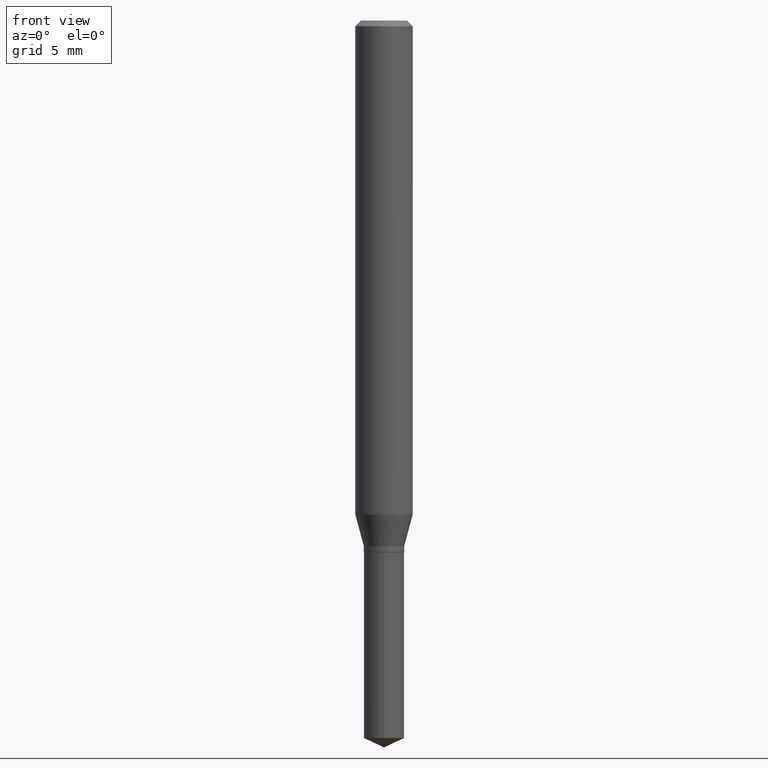
[diagram: clean part render]
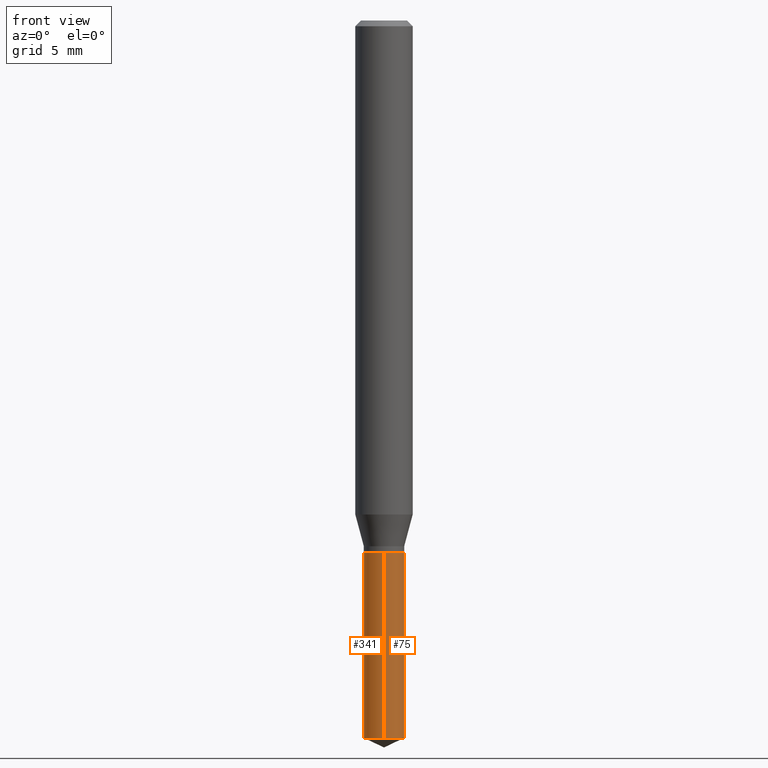
[diagram: same view with one multi-face feature highlighted, each face labeled with its STEP entity id]
A machine part, front view. The highlighted faces form ONE feature: a constant-radius fillet chain: 2 tangent blend faces with common blend radius 1.0554 mm. The faces share edges in the B-rep.
Their STEP definitions:
[1] entity #341 (Cylinder):
#4 = VERTEX_POINT ( 'NONE', #158 ) ;
#15 = EDGE_LOOP ( 'NONE', ( #53, #269, #306, #420 ) ) ;
#25 = DIRECTION ( 'NONE',  ( -2.445458899330790108E-29, 3.491495526022433599E-15, 1.000000000000000000 ) ) ;
#30 = DIRECTION ( 'NONE',  ( -2.445458899330790108E-29, 3.491495526022433205E-15, 1.000000000000000000 ) ) ;
#31 = CIRCLE ( 'NONE', #397, 0.04154999999999999666 ) ;
#49 = CARTESIAN_POINT ( 'NONE',  ( 2.952305067083577432E-16, 0.04154999999999484800, -1.476724916803660026 ) ) ;
#53 = ORIENTED_EDGE ( 'NONE', *, *, #256, .F. ) ;
#60 = CARTESIAN_POINT ( 'NONE',  ( 2.676565608369631794E-29, -3.821426325363822773E-15, -1.094499999999999806 ) ) ;
#66 = CARTESIAN_POINT ( 'NONE',  ( -2.901420992578375736E-16, -0.04155000000000381999, -1.094499999999999806 ) ) ;
#70 = DIRECTION ( 'NONE',  ( -2.445458899330790108E-29, 3.491495526022433205E-15, 1.000000000000000000 ) ) ;
#124 = CARTESIAN_POINT ( 'NONE',  ( -2.901420992578375736E-16, -0.04155000000000381999, -1.094499999999999806 ) ) ;
#132 = DIRECTION ( 'NONE',  ( -2.445458899330790108E-29, 3.491495526022433599E-15, 1.000000000000000000 ) ) ;
#145 = DIRECTION ( 'NONE',  ( -6.982962677686265133E-15, -1.000000000000000000, 3.287422375047248476E-15 ) ) ;
#150 = CARTESIAN_POINT ( 'NONE',  ( -2.901420992578283045E-16, -0.04155000000000516613, -1.476724916803659582 ) ) ;
#158 = CARTESIAN_POINT ( 'NONE',  ( 2.952305067083576939E-16, 0.04154999999999617333, -1.094500000000000028 ) ) ;
#170 = LINE ( 'NONE', #425, #327 ) ;
#178 = DIRECTION ( 'NONE',  ( -6.982962677686265133E-15, -1.000000000000000000, 3.287422375047248476E-15 ) ) ;
#187 = CARTESIAN_POINT ( 'NONE',  ( 2.676565608369631794E-29, -3.821426325363822773E-15, -1.094499999999999806 ) ) ;
#191 = FACE_OUTER_BOUND ( 'NONE', #15, .T. ) ;
#211 = DIRECTION ( 'NONE',  ( -2.445458899330790108E-29, 3.491495526022433205E-15, 1.000000000000000000 ) ) ;
#222 = VERTEX_POINT ( 'NONE', #49 ) ;
#256 = EDGE_CURVE ( 'NONE', #222, #4, #170, .T. ) ;
#258 = AXIS2_PLACEMENT_3D ( 'NONE', #60, #211, #178 ) ;
#269 = ORIENTED_EDGE ( 'NONE', *, *, #386, .T. ) ;
#287 = CARTESIAN_POINT ( 'NONE',  ( 3.611280932713112660E-29, -5.155962912318098276E-15, -1.476724916803659804 ) ) ;
#304 = VERTEX_POINT ( 'NONE', #124 ) ;
#306 = ORIENTED_EDGE ( 'NONE', *, *, #391, .T. ) ;
#319 = EDGE_CURVE ( 'NONE', #4, #304, #429, .T. ) ;
#322 = LINE ( 'NONE', #66, #457 ) ;
#327 = VECTOR ( 'NONE', #132, 39.37007874015748143 ) ;
#341 = ADVANCED_FACE ( 'NONE', ( #191 ), #401, .T. ) ;
#386 = EDGE_CURVE ( 'NONE', #222, #416, #31, .T. ) ;
#391 = EDGE_CURVE ( 'NONE', #416, #304, #322, .T. ) ;
#396 = DIRECTION ( 'NONE',  ( -6.982962677686265133E-15, -1.000000000000000000, 6.574844750094496952E-15 ) ) ;
#397 = AXIS2_PLACEMENT_3D ( 'NONE', #287, #70, #396 ) ;
#401 = CYLINDRICAL_SURFACE ( 'NONE', #405, 0.04154999999999999666 ) ;
#405 = AXIS2_PLACEMENT_3D ( 'NONE', #187, #30, #145 ) ;
#416 = VERTEX_POINT ( 'NONE', #150 ) ;
#420 = ORIENTED_EDGE ( 'NONE', *, *, #319, .F. ) ;
#425 = CARTESIAN_POINT ( 'NONE',  ( 2.952305067083483261E-16, 0.04154999999999617333, -1.094500000000000028 ) ) ;
#429 = CIRCLE ( 'NONE', #258, 0.04154999999999999666 ) ;
#457 = VECTOR ( 'NONE', #25, 39.37007874015748143 ) ;
[2] entity #75 (Cylinder):
#2 = DIRECTION ( 'NONE',  ( -2.445458899330790108E-29, 3.491495526022433205E-15, 1.000000000000000000 ) ) ;
#4 = VERTEX_POINT ( 'NONE', #158 ) ;
#6 = CARTESIAN_POINT ( 'NONE',  ( 2.676565608369631794E-29, -3.821426325363822773E-15, -1.094499999999999806 ) ) ;
#19 = EDGE_LOOP ( 'NONE', ( #275, #231, #358, #194 ) ) ;
#25 = DIRECTION ( 'NONE',  ( -2.445458899330790108E-29, 3.491495526022433599E-15, 1.000000000000000000 ) ) ;
#38 = DIRECTION ( 'NONE',  ( -6.982962677686265133E-15, -1.000000000000000000, 3.287422375047248476E-15 ) ) ;
#49 = CARTESIAN_POINT ( 'NONE',  ( 2.952305067083577432E-16, 0.04154999999999484800, -1.476724916803660026 ) ) ;
#52 = CARTESIAN_POINT ( 'NONE',  ( 3.611280932713112660E-29, -5.155962912318098276E-15, -1.476724916803659804 ) ) ;
#65 = AXIS2_PLACEMENT_3D ( 'NONE', #77, #298, #78 ) ;
#66 = CARTESIAN_POINT ( 'NONE',  ( -2.901420992578375736E-16, -0.04155000000000381999, -1.094499999999999806 ) ) ;
#75 = ADVANCED_FACE ( 'NONE', ( #198 ), #408, .T. ) ;
#77 = CARTESIAN_POINT ( 'NONE',  ( 2.676565608369631794E-29, -3.821426325363822773E-15, -1.094499999999999806 ) ) ;
#78 = DIRECTION ( 'NONE',  ( -6.982962677686265133E-15, -1.000000000000000000, 3.287422375047248476E-15 ) ) ;
#79 = AXIS2_PLACEMENT_3D ( 'NONE', #6, #2, #38 ) ;
#105 = DIRECTION ( 'NONE',  ( -2.445458899330790108E-29, 3.491495526022433205E-15, 1.000000000000000000 ) ) ;
#124 = CARTESIAN_POINT ( 'NONE',  ( -2.901420992578375736E-16, -0.04155000000000381999, -1.094499999999999806 ) ) ;
#125 = EDGE_CURVE ( 'NONE', #304, #4, #136, .T. ) ;
#132 = DIRECTION ( 'NONE',  ( -2.445458899330790108E-29, 3.491495526022433599E-15, 1.000000000000000000 ) ) ;
#136 = CIRCLE ( 'NONE', #65, 0.04154999999999999666 ) ;
#149 = AXIS2_PLACEMENT_3D ( 'NONE', #52, #105, #419 ) ;
#150 = CARTESIAN_POINT ( 'NONE',  ( -2.901420992578283045E-16, -0.04155000000000516613, -1.476724916803659582 ) ) ;
#158 = CARTESIAN_POINT ( 'NONE',  ( 2.952305067083576939E-16, 0.04154999999999617333, -1.094500000000000028 ) ) ;
#170 = LINE ( 'NONE', #425, #327 ) ;
#176 = EDGE_CURVE ( 'NONE', #416, #222, #417, .T. ) ;
#194 = ORIENTED_EDGE ( 'NONE', *, *, #391, .F. ) ;
#198 = FACE_OUTER_BOUND ( 'NONE', #19, .T. ) ;
#222 = VERTEX_POINT ( 'NONE', #49 ) ;
#231 = ORIENTED_EDGE ( 'NONE', *, *, #256, .T. ) ;
#256 = EDGE_CURVE ( 'NONE', #222, #4, #170, .T. ) ;
#275 = ORIENTED_EDGE ( 'NONE', *, *, #176, .T. ) ;
#298 = DIRECTION ( 'NONE',  ( -2.445458899330790108E-29, 3.491495526022433205E-15, 1.000000000000000000 ) ) ;
#304 = VERTEX_POINT ( 'NONE', #124 ) ;
#322 = LINE ( 'NONE', #66, #457 ) ;
#327 = VECTOR ( 'NONE', #132, 39.37007874015748143 ) ;
#358 = ORIENTED_EDGE ( 'NONE', *, *, #125, .F. ) ;
#391 = EDGE_CURVE ( 'NONE', #416, #304, #322, .T. ) ;
#408 = CYLINDRICAL_SURFACE ( 'NONE', #79, 0.04154999999999999666 ) ;
#416 = VERTEX_POINT ( 'NONE', #150 ) ;
#417 = CIRCLE ( 'NONE', #149, 0.04154999999999999666 ) ;
#419 = DIRECTION ( 'NONE',  ( -6.982962677686265133E-15, -1.000000000000000000, 6.574844750094496952E-15 ) ) ;
#425 = CARTESIAN_POINT ( 'NONE',  ( 2.952305067083483261E-16, 0.04154999999999617333, -1.094500000000000028 ) ) ;
#457 = VECTOR ( 'NONE', #25, 39.37007874015748143 ) ;